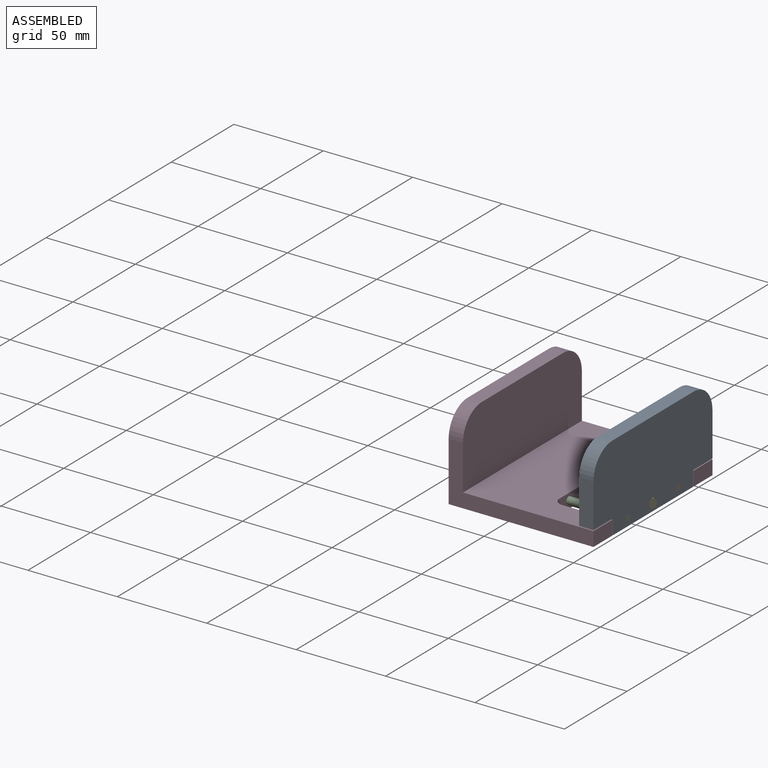
[diagram: assembled view]
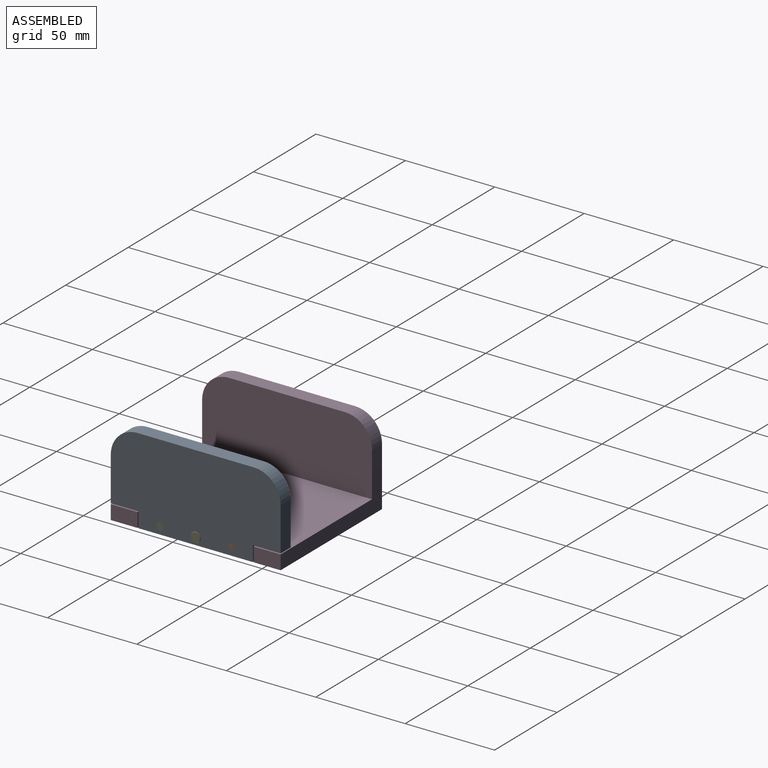
[diagram: assembled view, second angle]
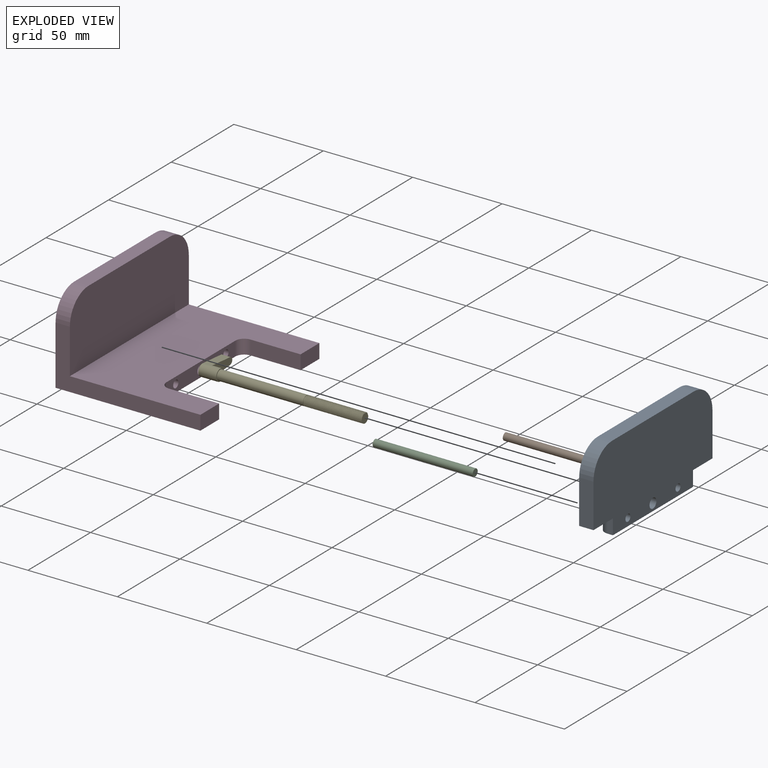
[diagram: exploded view]
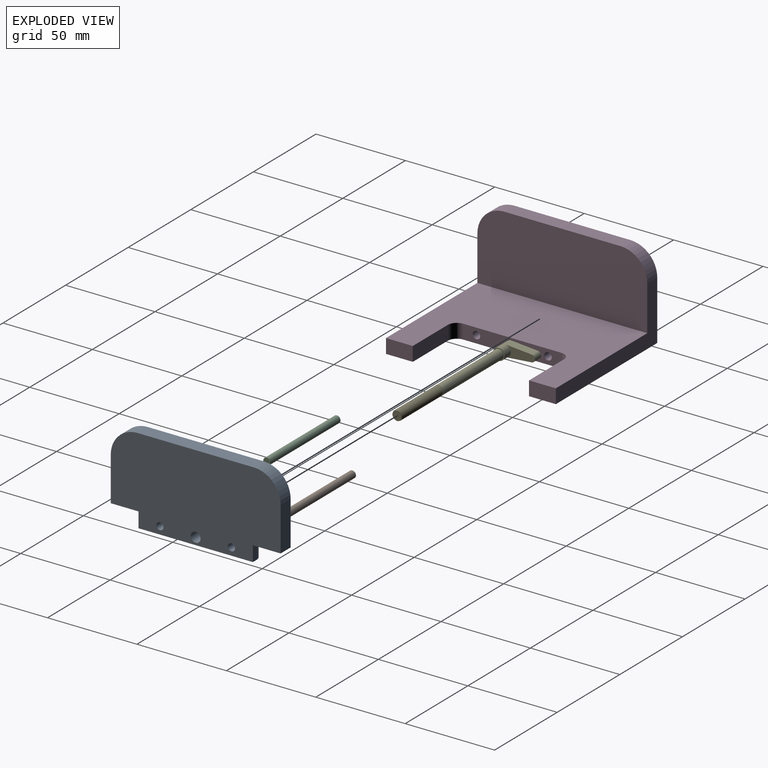
[diagram: exploded view, second angle]
ASSEMBLY  parts=5 mates=5
PART A: 17 faces, bbox 8x95x48 mm
  f0: plane 65x8mm, normal (0,0,1), area 520mm2, adj f2,f3,f15,f16
  f1: cylinder r=2.75mm len=8mm, axis (-1,0,0), area 138.2mm2, adj f2,f3
  f2: plane 95x48mm, normal (-1,0,0), area 4066mm2, adj f0,f1,f4,f5,f6,f7,f10,f11
  f3: plane 95x48mm, normal (1,0,0), area 4151mm2, adj f0,f1,f4,f5,f6,f7,f8,f9
  f4: plane 24.5x8mm, normal (0,-1,0), area 196mm2, adj f2,f3,f7,f15
  f5: plane 24.5x8mm, normal (0,1,0), area 196mm2, adj f2,f3,f10,f16
  f6: plane 64x8mm, normal (0,0,-1), area 501.3mm2, adj f2,f3,f8,f9,f11,f12
  f7: plane 20.5x8mm, normal (0,0,-1), area 129.4mm2, adj f2,f3,f4,f8,f11
  f8: plane 8.5x3mm, normal (0,-1,0), area 25.5mm2, adj f3,f6,f7,f11
  f9: plane 8.5x3mm, normal (0,1,0), area 25.5mm2, adj f3,f6,f10,f12
  f10: plane 20.5x8mm, normal (0,0,-1), area 129.4mm2, adj f2,f3,f5,f9,f12
  f11: cylinder r=5mm len=8.5mm, axis (0,0,-1), area 66.8mm2, adj f2,f6,f7,f8
  f12: cylinder r=5mm len=8.5mm, axis (0,0,1), area 66.8mm2, adj f2,f6,f9,f10
  f13: cylinder r=2mm len=8mm, axis (1,0,0), area 100.5mm2, adj f2,f3
  f14: cylinder r=2mm len=8mm, axis (1,0,0), area 100.5mm2, adj f2,f3
  f15: cylinder r=15mm len=15mm, axis (1,0,0), area 188.5mm2, adj f0,f2,f3,f4
  f16: cylinder r=15mm len=15mm, axis (-1,0,0), area 188.5mm2, adj f0,f2,f3,f5
PART B: 3 faces, bbox 56x4x4 mm
  f0: plane 4x4mm, normal (-1,0,0), area 12.6mm2, adj f2
  f1: plane 4x4mm, normal (1,0,0), area 12.6mm2, adj f2
  f2: cylinder r=2mm len=56mm, axis (1,0,0), area 703.7mm2, adj f0,f1
PART C: same geometry as B
PART D: 19 faces, bbox 81x95x48 mm
  f0: plane 81x33mm, normal (0,1,0), area 848mm2, adj f2,f3,f4,f5,f7,f17
  f1: plane 81x33mm, normal (0,-1,0), area 848mm2, adj f3,f4,f5,f6,f7,f18
  f2: plane 15x8mm, normal (1,0,0), area 120mm2, adj f0,f3,f4,f10
  f3: plane 95x73mm, normal (0,0,1), area 4800.7mm2, adj f0,f1,f2,f6,f7,f10,f11,f12
  f4: plane 95x81mm, normal (0,0,-1), area 5560.7mm2, adj f0,f1,f2,f5,f6,f10,f11,f12
  f5: plane 95x48mm, normal (-1,0,0), area 4412mm2, adj f0,f1,f4,f8,f9,f15,f16,f17
  f6: plane 15x8mm, normal (1,0,0), area 120mm2, adj f1,f3,f4,f11
  f7: plane 95x40mm, normal (1,0,0), area 3703.4mm2, adj f0,f1,f3,f8,f17,f18
  f8: plane 65x8mm, normal (0,0,1), area 520mm2, adj f5,f7,f17,f18
  f9: cylinder r=2.75mm len=48mm, axis (-1,0,0), area 829.4mm2, adj f5,f12
  f10: plane 28x8mm, normal (0,-1,0), area 224mm2, adj f2,f3,f4,f13
  f11: plane 28x8mm, normal (0,1,0), area 224mm2, adj f3,f4,f6,f14
  f12: plane 55x8mm, normal (1,0,0), area 388.5mm2, adj f3,f4,f9,f13,f14,f15,f16
  f13: cylinder r=5mm len=8mm, axis (0,0,1), area 62.8mm2, adj f3,f4,f10,f12
  f14: cylinder r=5mm len=8mm, axis (0,0,-1), area 62.8mm2, adj f3,f4,f11,f12
  f15: cylinder r=2.1mm len=48mm, axis (1,0,0), area 633.3mm2, adj f5,f12
  f16: cylinder r=2.1mm len=48mm, axis (1,0,0), area 633.3mm2, adj f5,f12
  f17: cylinder r=15mm len=15mm, axis (1,0,0), area 188.5mm2, adj f0,f5,f7,f8
  f18: cylinder r=15mm len=15mm, axis (-1,0,0), area 188.5mm2, adj f1,f5,f7,f8
PART E: 18 faces, bbox 91.4x6.6x20.1 mm
  f0: plane 5.28x4.45mm, normal (-1,0,0), area 1.2mm2, adj f5,f8,f16,f17
  f1: cylinder r=2.75mm len=48.25mm, axis (1,0,0), area 833.7mm2, adj f2,f6
  f2: plane 6.5x6.5mm, normal (1,0,0), area 9.4mm2, adj f1,f3
  f3: cylinder r=3.25mm len=10mm, axis (-1,0,0), area 154.5mm2, adj f2,f4,f9,f10,f12,f13
  f4: plane 0.55x0.05mm, normal (-1,0,0), area 0mm2, adj f3,f10
  f5: cylinder r=2.55mm len=5.1mm, axis (1,0,0), area 4mm2, adj f0,f6,f14
  f6: plane 5.5x5.5mm, normal (1,0,0), area 3.3mm2, adj f1,f5
  f7: plane 5.35x5.33mm, normal (1,0,0), area 21.2mm2, adj f8,f15,f16,f17
  f8: cylinder r=2.75mm len=32.5mm, axis (1,0,0), area -321.7mm2, adj f0,f7,f16,f17
  f9: plane 16.47x6.44mm, normal (1,0,0), area 67.2mm2, adj f3,f10,f11,f12
  f10: plane 14.75x5mm, normal (0,-1,0.08), area 74mm2, adj f3,f4,f9,f11,f13
  f11: cylinder r=2mm len=5mm, axis (1,0,0), area 31.4mm2, adj f9,f10,f12,f13
  f12: plane 14.47x5mm, normal (0,1,0.09), area 72.6mm2, adj f3,f9,f11,f13
  f13: plane 20x6.5mm, normal (-1,0,0), area 100.4mm2, adj f3,f10,f11,f12
  f14: plane 4.57x2.87mm, normal (1,0,0), area 0.4mm2, adj f5,f15,f16,f17
  f15: bspline ~32.88x5.73mm, area 141.3mm2, adj f7,f14,f16,f17
  f16: bspline ~32.91x6.35mm, area 333.7mm2, adj f0,f7,f8,f14,f15
  f17: bspline ~32.82x6.35mm, area 332.8mm2, adj f0,f7,f8,f14,f15
PLACE A t=(9.82,13.06,0.5)mm
PLACE B t=(9.82,53.06,0.5)mm
PLACE C t=(9.82,13.06,0.5)mm
PLACE D rot(axis=(-0.05,0.58,0.82),0deg) t=(9.82,13.06,0.5)mm fixed
PLACE E rot(axis=(-1,0,0),90deg) t=(9.82,17.06,-3.5)mm
MATE fastened A.f13 <-> B.f2  axis (1,0,0) through (50.32,33.06,-3.25)mm
MATE fastened A.f14 <-> C.f2  axis (1,0,0) through (50.32,-6.94,-3.25)mm
MATE slider A.f1 <-> D.f9  axis (-1,0,0) through (42.32,13.06,-3.5)mm
MATE cylindrical A.f1 <-> E.f1  axis (-1,0,0) through (50.32,13.06,-3.5)mm
MATE revolute D.f9 <-> E.f1  axis (-1,0,0) through (-30.68,13.06,-3.5)mm
